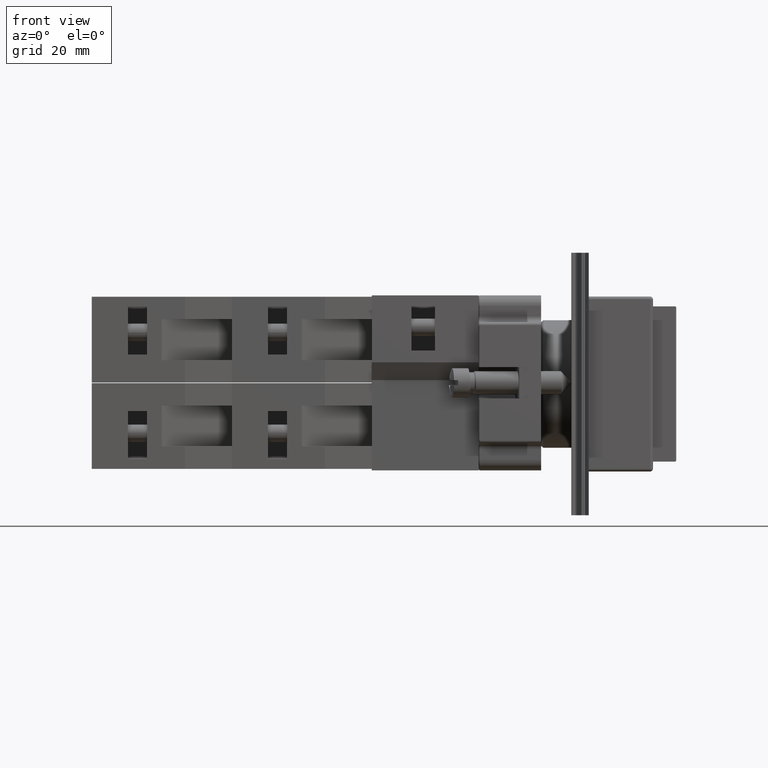
[diagram: clean part render]
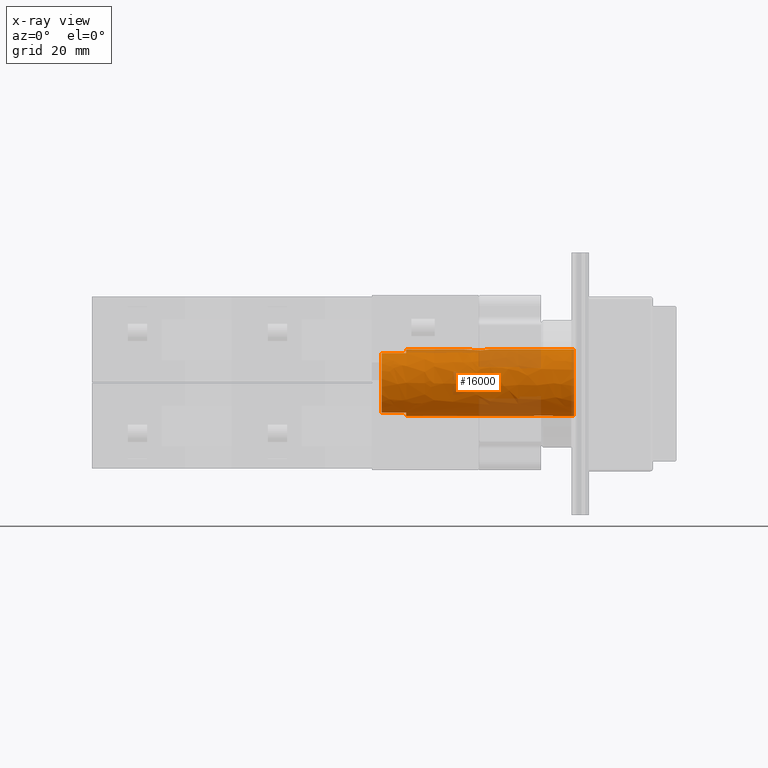
[diagram: x-ray — body ghosted, one internal face saturated and labeled with its STEP entity id]
A machine part, front view, then the same camera in x-ray: the body is ghosted and one INTERNAL B-rep face — a face not visible from any outside direction — is saturated and labeled: STEP entity #16000.
In plain terms, the highlighted face is a freeform B-spline surface patch.
Its self-contained STEP definition (entity closure, byte-faithful):
#15828=CARTESIAN_POINT('',(-0.799346435372375,1.727351595746989,16.600000000000005));
#15829=VERTEX_POINT('',#15828);
#15839=CARTESIAN_POINT('',(-0.799346435372375,-8.455549332795396,16.600000000000005));
#15840=VERTEX_POINT('',#15839);
#15841=CARTESIAN_POINT('',(-3.417123578269125,-3.364098868524204,16.600000000000005));
#15842=DIRECTION('',(0.0,0.0,-1.0));
#15843=DIRECTION('',(-1.0,0.0,0.0));
#15844=AXIS2_PLACEMENT_3D('',#15841,#15842,#15843);
#15845=CIRCLE('',#15844,5.725000000000000);
#15846=EDGE_CURVE('',#15829,#15840,#15845,.T.);
#15865=CARTESIAN_POINT('',(-6.079831826664983,-8.432196123305790,16.600000000000005));
#15866=VERTEX_POINT('',#15865);
#15874=CARTESIAN_POINT('',(-6.079831826664983,1.703998386257384,16.600000000000005));
#15875=VERTEX_POINT('',#15874);
#15876=CARTESIAN_POINT('',(-3.417123578269125,-3.364098868524204,16.600000000000005));
#15877=DIRECTION('',(0.0,0.0,-1.0));
#15878=DIRECTION('',(-1.0,0.0,0.0));
#15879=AXIS2_PLACEMENT_3D('',#15876,#15877,#15878);
#15880=CIRCLE('',#15879,5.725000000000000);
#15881=EDGE_CURVE('',#15866,#15875,#15880,.T.);
#15913=CARTESIAN_POINT('',(2.307876421730875,-3.364098868524204,-16.399999999999999));
#15914=CARTESIAN_POINT('',(2.307876421730875,-3.364098868524204,16.600000000000005));
#15915=CARTESIAN_POINT('',(2.307876421730873,-9.089098868524202,-16.399999999999999));
#15916=CARTESIAN_POINT('',(2.307876421730873,-9.089098868524202,16.600000000000005));
#15917=CARTESIAN_POINT('',(-3.417123578269126,-9.089098868524204,-16.399999999999999));
#15918=CARTESIAN_POINT('',(-3.417123578269126,-9.089098868524204,16.600000000000005));
#15919=CARTESIAN_POINT('',(-9.142123578269125,-9.089098868524202,-16.399999999999999));
#15920=CARTESIAN_POINT('',(-9.142123578269125,-9.089098868524202,16.600000000000005));
#15921=CARTESIAN_POINT('',(-9.142123578269125,-3.364098868524203,-16.399999999999999));
#15922=CARTESIAN_POINT('',(-9.142123578269125,-3.364098868524203,16.600000000000005));
#15923=CARTESIAN_POINT('',(-9.142123578269123,2.360901131475796,-16.399999999999999));
#15924=CARTESIAN_POINT('',(-9.142123578269123,2.360901131475796,16.600000000000005));
#15925=CARTESIAN_POINT('',(-3.417123578269124,2.360901131475796,-16.399999999999999));
#15926=CARTESIAN_POINT('',(-3.417123578269124,2.360901131475796,16.600000000000005));
#15927=CARTESIAN_POINT('',(2.307876421730875,2.360901131475794,-16.399999999999999));
#15928=CARTESIAN_POINT('',(2.307876421730875,2.360901131475794,16.600000000000005));
#15929=CARTESIAN_POINT('',(2.307876421730875,-3.364098868524204,-16.399999999999999));
#15930=CARTESIAN_POINT('',(2.307876421730875,-3.364098868524204,16.600000000000005));
#15938=(BOUNDED_SURFACE()B_SPLINE_SURFACE(1,2,((#15913,#15915,#15917,#15919,#15921,#15923,#15925,#15927,#15929),(#15914,#15916,#15918,#15920,#15922,#15924,#15926,#15928,#15930)),.UNSPECIFIED.,.F.,.T.,.U.)B_SPLINE_SURFACE_WITH_KNOTS((2,2),(3,2,2,2,3),(-2.882096069868996,2.882096069868997),(0.0,8.992808970900782,17.985617941801564,26.978426912702346,35.971235883603129),.UNSPECIFIED.)GEOMETRIC_REPRESENTATION_ITEM()RATIONAL_B_SPLINE_SURFACE(((1.0,0.707106781186548,1.0,0.707106781186548,1.0,0.707106781186548,1.0,0.707106781186548,1.0),(1.0,0.707106781186548,1.0,0.707106781186548,1.0,0.707106781186548,1.0,0.707106781186548,1.0)))REPRESENTATION_ITEM('')SURFACE());
#15939=CARTESIAN_POINT('',(-0.799346435372380,1.727351595746991,12.400000000000000));
#15940=VERTEX_POINT('',#15939);
#15941=CARTESIAN_POINT('',(-0.799346435372380,1.727351595746991,12.400000000000000));
#15942=DIRECTION('',(0.0,0.0,1.0));
#15943=VECTOR('',#15942,4.200000000000005);
#15944=LINE('',#15941,#15943);
#15945=EDGE_CURVE('',#15940,#15829,#15944,.T.);
#15946=ORIENTED_EDGE('',*,*,#15945,.F.);
#15947=CARTESIAN_POINT('',(-6.079831826664979,1.703998386257386,12.400000000000000));
#15948=VERTEX_POINT('',#15947);
#15949=CARTESIAN_POINT('',(-3.417123578269125,-3.364098868524204,12.399999999999993));
#15950=DIRECTION('',(0.0,0.0,-1.0));
#15951=DIRECTION('',(-1.0,0.0,0.0));
#15952=AXIS2_PLACEMENT_3D('',#15949,#15950,#15951);
#15953=CIRCLE('',#15952,5.725000000000000);
#15954=EDGE_CURVE('',#15948,#15940,#15953,.T.);
#15955=ORIENTED_EDGE('',*,*,#15954,.F.);
#15956=CARTESIAN_POINT('',(-6.079831826664983,1.703998386257384,16.600000000000005));
#15957=DIRECTION('',(0.0,0.0,-1.0));
#15958=VECTOR('',#15957,4.200000000000005);
#15959=LINE('',#15956,#15958);
#15960=EDGE_CURVE('',#15875,#15948,#15959,.T.);
#15961=ORIENTED_EDGE('',*,*,#15960,.F.);
#15962=ORIENTED_EDGE('',*,*,#15881,.F.);
#15963=CARTESIAN_POINT('',(-6.079831826664979,-8.432196123305793,12.400000000000000));
#15964=VERTEX_POINT('',#15963);
#15965=CARTESIAN_POINT('',(-6.079831826664979,-8.432196123305793,12.400000000000000));
#15966=DIRECTION('',(0.0,0.0,1.0));
#15967=VECTOR('',#15966,4.200000000000005);
#15968=LINE('',#15965,#15967);
#15969=EDGE_CURVE('',#15964,#15866,#15968,.T.);
#15970=ORIENTED_EDGE('',*,*,#15969,.F.);
#15971=CARTESIAN_POINT('',(-0.799346435372380,-8.455549332795400,12.400000000000000));
#15972=VERTEX_POINT('',#15971);
#15973=CARTESIAN_POINT('',(-3.417123578269125,-3.364098868524204,12.399999999999993));
#15974=DIRECTION('',(0.0,0.0,-1.0));
#15975=DIRECTION('',(-1.0,0.0,0.0));
#15976=AXIS2_PLACEMENT_3D('',#15973,#15974,#15975);
#15977=CIRCLE('',#15976,5.725000000000000);
#15978=EDGE_CURVE('',#15972,#15964,#15977,.T.);
#15979=ORIENTED_EDGE('',*,*,#15978,.F.);
#15980=CARTESIAN_POINT('',(-0.799346435372375,-8.455549332795396,16.600000000000005));
#15981=DIRECTION('',(0.0,0.0,-1.0));
#15982=VECTOR('',#15981,4.200000000000005);
#15983=LINE('',#15980,#15982);
#15984=EDGE_CURVE('',#15840,#15972,#15983,.T.);
#15985=ORIENTED_EDGE('',*,*,#15984,.F.);
#15986=ORIENTED_EDGE('',*,*,#15846,.F.);
#15987=EDGE_LOOP('',(#15946,#15955,#15961,#15962,#15970,#15979,#15985,#15986));
#15988=FACE_OUTER_BOUND('',#15987,.T.);
#15989=CARTESIAN_POINT('',(-9.142123578269125,-3.364098868524204,-16.399999999999999));
#15990=VERTEX_POINT('',#15989);
#15991=CARTESIAN_POINT('',(-3.417123578269125,-3.364098868524204,-16.399999999999999));
#15992=DIRECTION('',(0.0,0.0,1.0));
#15993=DIRECTION('',(-1.0,0.0,0.0));
#15994=AXIS2_PLACEMENT_3D('',#15991,#15992,#15993);
#15995=CIRCLE('',#15994,5.725000000000000);
#15996=EDGE_CURVE('',#15990,#15990,#15995,.T.);
#15997=ORIENTED_EDGE('',*,*,#15996,.F.);
#15998=EDGE_LOOP('',(#15997));
#15999=FACE_BOUND('',#15998,.T.);
#16000=ADVANCED_FACE('',(#15988,#15999),#15938,.F.);